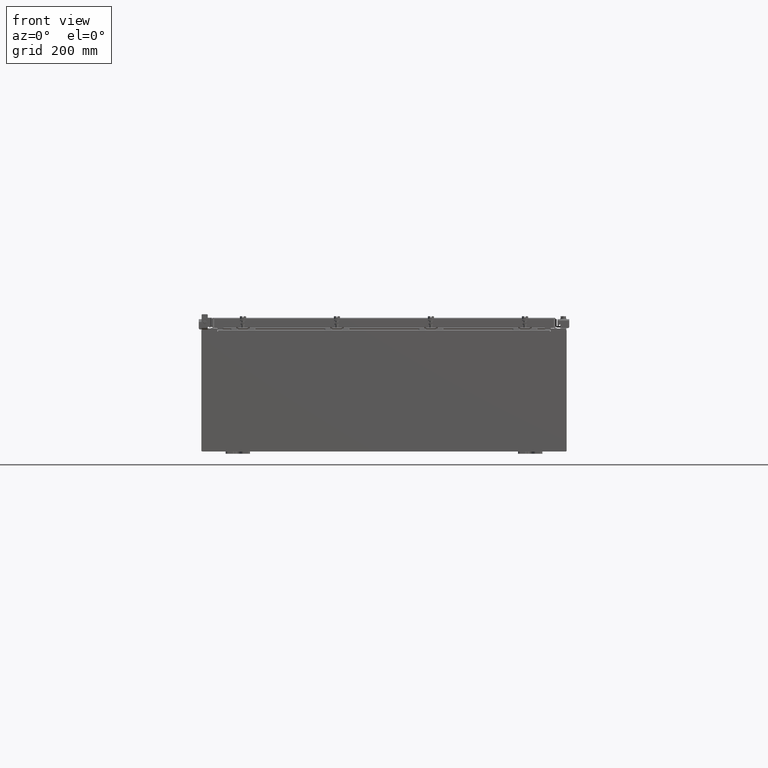
[diagram: clean part render]
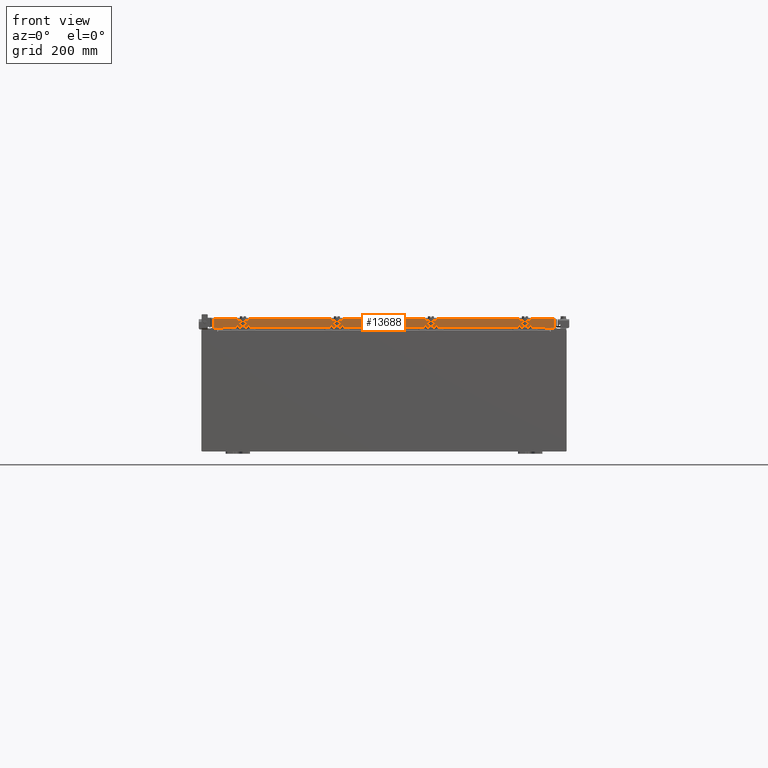
[diagram: same view with one face highlighted and labeled with its STEP entity id]
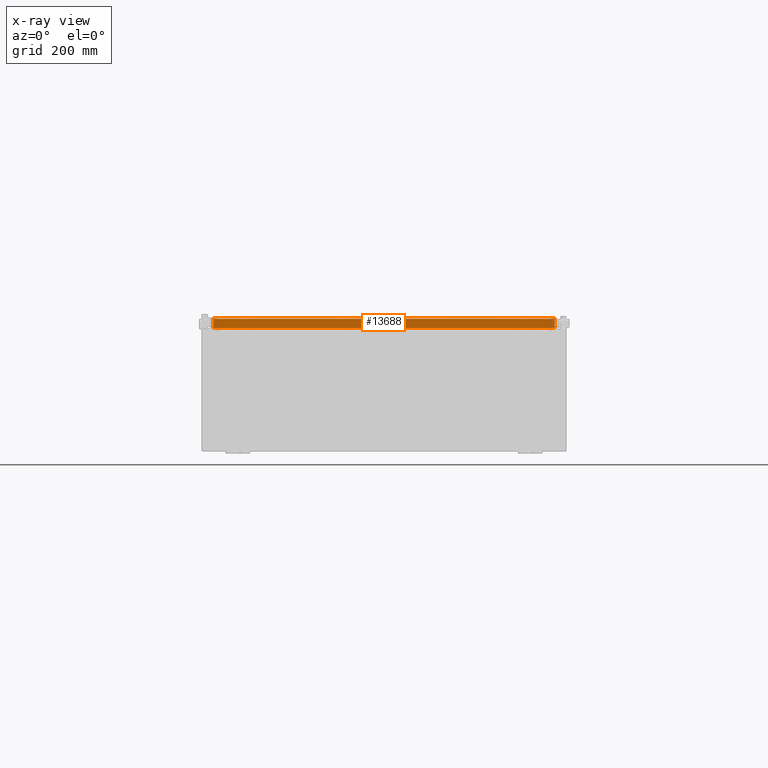
[diagram: x-ray of the same camera — body ghosted, the highlighted face saturated]
A machine part, front view. The second image highlights one B-rep face of the part: STEP entity #13688.
The next image is the same camera in x-ray: the body ghosted, the highlighted face saturated — about 0% of this face is hidden behind the body in this view.
In plain terms, the highlighted planar face has unit normal (0, 1, -0).
Its self-contained STEP definition (entity closure, byte-faithful):
#170 = EDGE_CURVE ( 'NONE', #20852, #14937, #3855, .T. ) ;
#1438 = EDGE_CURVE ( 'NONE', #6980, #20493, #10321, .T. ) ;
#1484 = ORIENTED_EDGE ( 'NONE', *, *, #22583, .F. ) ;
#2260 = VECTOR ( 'NONE', #17217, 39.37007874015748100 ) ;
#3618 = CARTESIAN_POINT ( 'NONE',  ( 13.23915786437626900, -23.09399999999998700, -0.8500000000000016400 ) ) ;
#3855 = LINE ( 'NONE', #15112, #13352 ) ;
#4213 = LINE ( 'NONE', #20500, #14308 ) ;
#4224 = EDGE_CURVE ( 'NONE', #20742, #6980, #10806, .T. ) ;
#4516 = CARTESIAN_POINT ( 'NONE',  ( -13.23915786437626400, -23.09399999999998700, -0.8500000000000016400 ) ) ;
#4968 = ORIENTED_EDGE ( 'NONE', *, *, #6618, .F. ) ;
#5646 = EDGE_CURVE ( 'NONE', #9150, #14937, #17021, .T. ) ;
#5872 = PLANE ( 'NONE',  #8271 ) ;
#6019 = DIRECTION ( 'NONE',  ( 0.0000000000000000000, -4.376050147970507600E-031, -1.000000000000000000 ) ) ;
#6618 = EDGE_CURVE ( 'NONE', #9150, #20742, #4213, .T. ) ;
#6980 = VERTEX_POINT ( 'NONE', #15594 ) ;
#7323 = LINE ( 'NONE', #15327, #2260 ) ;
#8247 = DIRECTION ( 'NONE',  ( 0.0000000000000000000, -4.376050147970507600E-031, -1.000000000000000000 ) ) ;
#8271 = AXIS2_PLACEMENT_3D ( 'NONE', #19160, #21066, #9681 ) ;
#8754 = ORIENTED_EDGE ( 'NONE', *, *, #5646, .T. ) ;
#9150 = VERTEX_POINT ( 'NONE', #18383 ) ;
#9681 = DIRECTION ( 'NONE',  ( -1.000000000000000000, 1.552406872376339700E-016, 0.0000000000000000000 ) ) ;
#10321 = LINE ( 'NONE', #19257, #21038 ) ;
#10544 = EDGE_LOOP ( 'NONE', ( #4968, #8754, #11036, #1484, #20889, #11831 ) ) ;
#10806 = LINE ( 'NONE', #21537, #21507 ) ;
#11036 = ORIENTED_EDGE ( 'NONE', *, *, #170, .F. ) ;
#11831 = ORIENTED_EDGE ( 'NONE', *, *, #4224, .F. ) ;
#13352 = VECTOR ( 'NONE', #17001, 39.37007874015748100 ) ;
#13507 = DIRECTION ( 'NONE',  ( -1.000000000000000000, 1.552406872376339700E-016, 1.212817869044015300E-016 ) ) ;
#13571 = CARTESIAN_POINT ( 'NONE',  ( -13.98915786437626500, -23.09399999999999400, 2.608136560115921600E-016 ) ) ;
#13688 = ADVANCED_FACE ( 'NONE', ( #17262 ), #5872, .F. ) ;
#13819 = CARTESIAN_POINT ( 'NONE',  ( 13.98915786437624200, -23.09399999999999400, -0.08769999999999589200 ) ) ;
#14308 = VECTOR ( 'NONE', #14768, 39.37007874015748100 ) ;
#14768 = DIRECTION ( 'NONE',  ( 1.000000000000000000, -1.552406872376339700E-016, 1.368455531567204500E-048 ) ) ;
#14937 = VERTEX_POINT ( 'NONE', #22675 ) ;
#15112 = CARTESIAN_POINT ( 'NONE',  ( 14.07799999999999800, -23.09400000000000100, -0.8499999999999996400 ) ) ;
#15327 = CARTESIAN_POINT ( 'NONE',  ( 13.23915786437626900, -23.09399999999998700, -0.8500000000000016400 ) ) ;
#15594 = CARTESIAN_POINT ( 'NONE',  ( 13.98915786437626900, -23.09399999999999400, -0.8499999999999996400 ) ) ;
#17001 = DIRECTION ( 'NONE',  ( -1.000000000000000000, 1.552406872376339700E-016, 1.212817869044015300E-016 ) ) ;
#17021 = LINE ( 'NONE', #13571, #22080 ) ;
#17217 = DIRECTION ( 'NONE',  ( -1.000000000000000000, 0.0000000000000000000, 0.0000000000000000000 ) ) ;
#17262 = FACE_OUTER_BOUND ( 'NONE', #10544, .T. ) ;
#18383 = CARTESIAN_POINT ( 'NONE',  ( -13.98915786437626500, -23.09399999999999400, -0.08769999999999589200 ) ) ;
#19160 = CARTESIAN_POINT ( 'NONE',  ( -3.585128431065918500E-015, -23.09399999999999400, 2.608136560115921600E-016 ) ) ;
#19257 = CARTESIAN_POINT ( 'NONE',  ( 14.07799999999999800, -23.09400000000000100, -0.8499999999999996400 ) ) ;
#20493 = VERTEX_POINT ( 'NONE', #3618 ) ;
#20500 = CARTESIAN_POINT ( 'NONE',  ( 14.07799999999999800, -23.09399999999999400, -0.08769999999999589200 ) ) ;
#20742 = VERTEX_POINT ( 'NONE', #13819 ) ;
#20852 = VERTEX_POINT ( 'NONE', #4516 ) ;
#20889 = ORIENTED_EDGE ( 'NONE', *, *, #1438, .F. ) ;
#21038 = VECTOR ( 'NONE', #13507, 39.37007874015748100 ) ;
#21066 = DIRECTION ( 'NONE',  ( 1.552406872376339700E-016, 1.000000000000000000, -4.376050147970507600E-031 ) ) ;
#21507 = VECTOR ( 'NONE', #8247, 39.37007874015748100 ) ;
#21537 = CARTESIAN_POINT ( 'NONE',  ( 13.98915786437626900, -23.09399999999999400, -0.07470000000000000300 ) ) ;
#22080 = VECTOR ( 'NONE', #6019, 39.37007874015748100 ) ;
#22583 = EDGE_CURVE ( 'NONE', #20493, #20852, #7323, .T. ) ;
#22675 = CARTESIAN_POINT ( 'NONE',  ( -13.98915786437626500, -23.09399999999999400, -0.8499999999999963100 ) ) ;